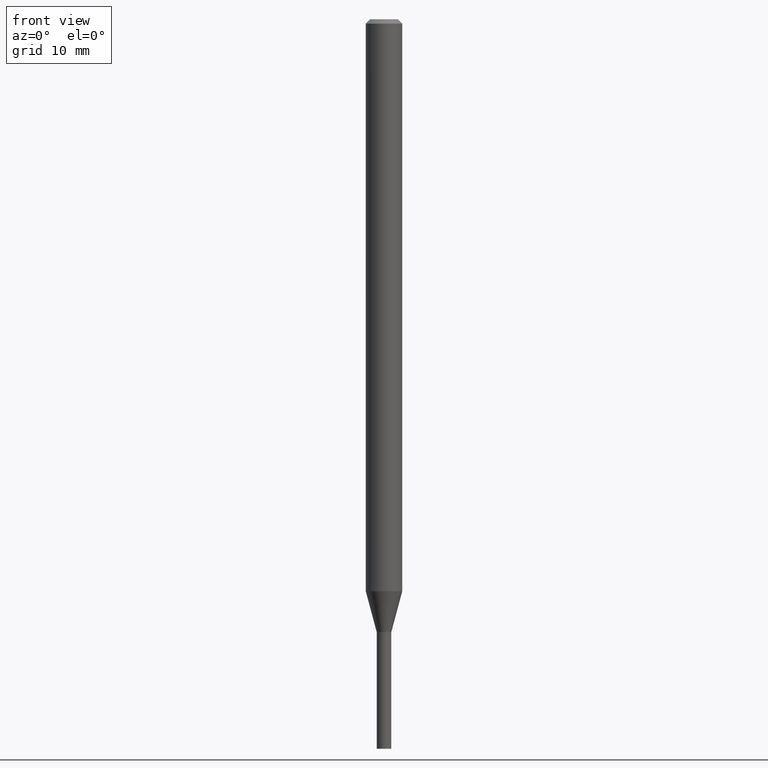
[diagram: clean part render]
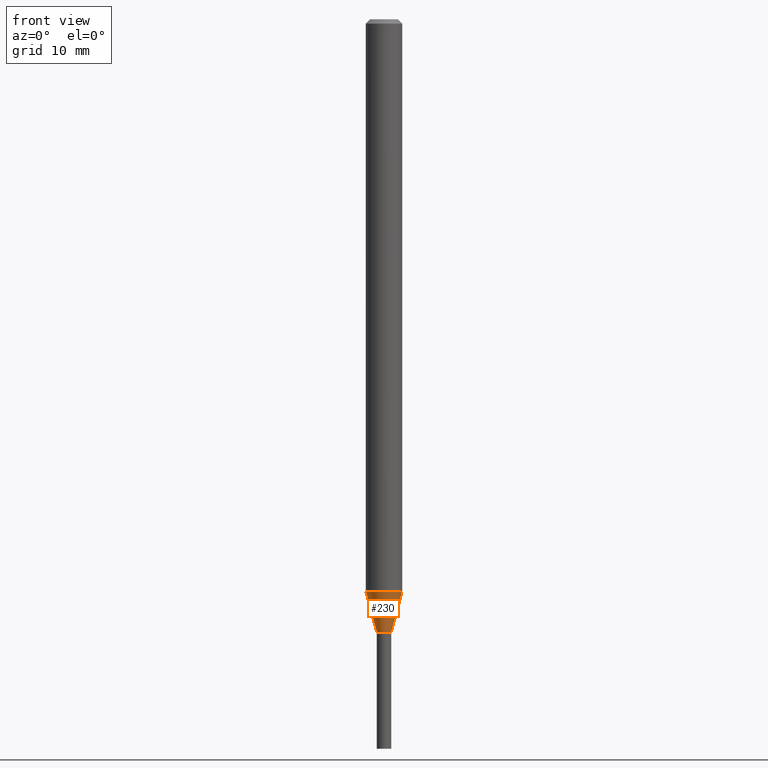
[diagram: same view with one face highlighted and labeled with its STEP entity id]
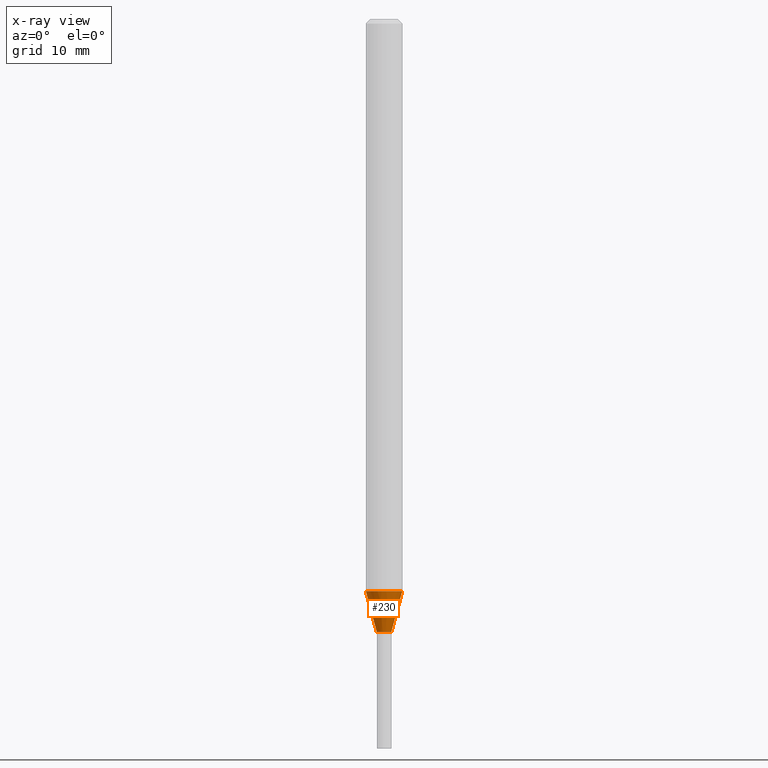
[diagram: x-ray of the same camera — body ghosted, the highlighted face saturated]
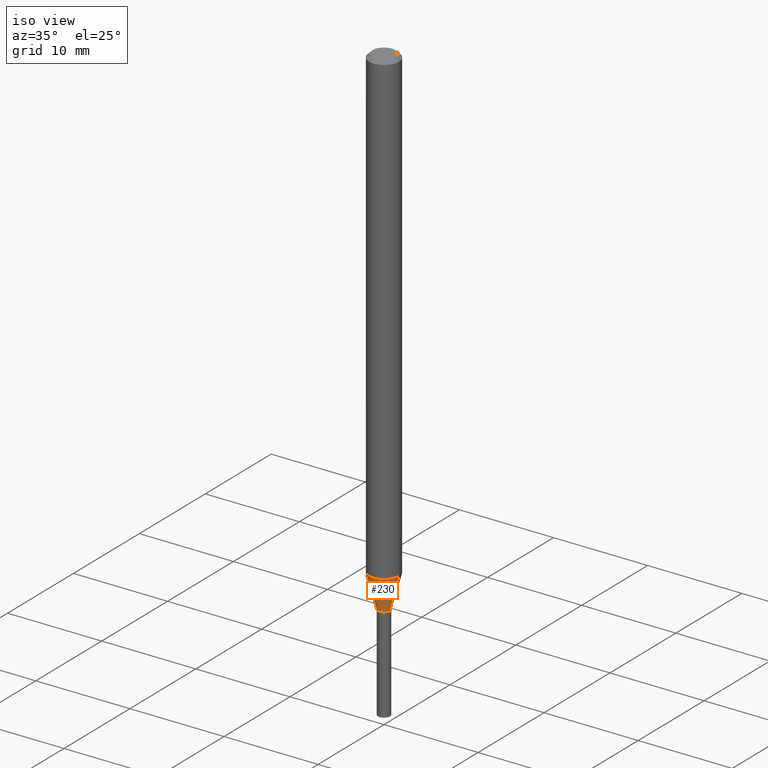
[diagram: same view with one face highlighted and labeled with its STEP entity id]
A machine part, front view. The second image highlights one B-rep face of the part: STEP entity #230.
The next image is the same camera in x-ray: the body ghosted, the highlighted face saturated — about 0% of this face is hidden behind the body in this view.
A second angle (iso view) of the same face is appended — the face is thin or edge-on in the first view.
In plain terms, the highlighted conical surface has half-angle 15 deg.
Its self-contained STEP definition (entity closure, byte-faithful):
#18 = DIRECTION ( 'NONE',  ( 1.000000000000000000, -6.982962677686262766E-15, 0.000000000000000000 ) ) ;
#57 = DIRECTION ( 'NONE',  ( -2.445468806185136597E-29, 3.491481338843145583E-15, 1.000000000000000000 ) ) ;
#58 = EDGE_CURVE ( 'NONE', #147, #273, #124, .T. ) ;
#86 = AXIS2_PLACEMENT_3D ( 'NONE', #351, #57, #153 ) ;
#119 = CONICAL_SURFACE ( 'NONE', #434, 0.02500000000000020609, 0.2617993877991500740 ) ;
#124 = LINE ( 'NONE', #177, #157 ) ;
#134 = CIRCLE ( 'NONE', #167, 0.06250000000000000000 ) ;
#145 = EDGE_CURVE ( 'NONE', #195, #356, #325, .T. ) ;
#147 = VERTEX_POINT ( 'NONE', #176 ) ;
#153 = DIRECTION ( 'NONE',  ( 1.000000000000000000, -6.982962677686275388E-15, 0.000000000000000000 ) ) ;
#154 = CARTESIAN_POINT ( 'NONE',  ( 0.02500000000000020609, -7.506684878512763535E-15, -2.100000000000000089 ) ) ;
#155 = FACE_OUTER_BOUND ( 'NONE', #266, .T. ) ;
#157 = VECTOR ( 'NONE', #169, 39.37007874015747433 ) ;
#167 = AXIS2_PLACEMENT_3D ( 'NONE', #193, #238, #18 ) ;
#169 = DIRECTION ( 'NONE',  ( -0.2588190451025213501, 5.211531920934551042E-15, 0.9659258262890682012 ) ) ;
#176 = CARTESIAN_POINT ( 'NONE',  ( -0.02500000000000020609, -6.776928631858541016E-15, -2.100000000000000089 ) ) ;
#177 = CARTESIAN_POINT ( 'NONE',  ( -0.02500000000000020609, -7.154475127630579297E-15, -2.100000000000000089 ) ) ;
#178 = ORIENTED_EDGE ( 'NONE', *, *, #145, .T. ) ;
#185 = CIRCLE ( 'NONE', #86, 0.02500000000000020609 ) ;
#189 = CARTESIAN_POINT ( 'NONE',  ( -0.06249999999999999306, -6.399382136086501158E-15, -1.960048094716168254 ) ) ;
#193 = CARTESIAN_POINT ( 'NONE',  ( 4.793236474250999839E-29, -6.843471345936563774E-15, -1.960048094716168254 ) ) ;
#195 = VERTEX_POINT ( 'NONE', #154 ) ;
#230 = ADVANCED_FACE ( 'NONE', ( #155 ), #119, .T. ) ;
#231 = VECTOR ( 'NONE', #364, 39.37007874015747433 ) ;
#238 = DIRECTION ( 'NONE',  ( -2.445468806185136597E-29, 3.491481338843145583E-15, 1.000000000000000000 ) ) ;
#243 = ORIENTED_EDGE ( 'NONE', *, *, #58, .F. ) ;
#265 = CARTESIAN_POINT ( 'NONE',  ( 5.135484492988787526E-29, -7.332110811570605290E-15, -2.100000000000000089 ) ) ;
#266 = EDGE_LOOP ( 'NONE', ( #243, #278, #178, #353 ) ) ;
#273 = VERTEX_POINT ( 'NONE', #189 ) ;
#278 = ORIENTED_EDGE ( 'NONE', *, *, #339, .T. ) ;
#282 = EDGE_CURVE ( 'NONE', #273, #356, #134, .T. ) ;
#285 = CARTESIAN_POINT ( 'NONE',  ( 0.02500000000000020609, -7.506684878512763535E-15, -2.100000000000000089 ) ) ;
#325 = LINE ( 'NONE', #285, #231 ) ;
#339 = EDGE_CURVE ( 'NONE', #147, #195, #185, .T. ) ;
#351 = CARTESIAN_POINT ( 'NONE',  ( 5.135484492988787526E-29, -7.332110811570605290E-15, -2.100000000000000089 ) ) ;
#353 = ORIENTED_EDGE ( 'NONE', *, *, #282, .F. ) ;
#356 = VERTEX_POINT ( 'NONE', #377 ) ;
#364 = DIRECTION ( 'NONE',  ( 0.2588190451025213501, 1.565188264969621968E-15, 0.9659258262890682012 ) ) ;
#377 = CARTESIAN_POINT ( 'NONE',  ( 0.06249999999999999306, -7.279906513291955444E-15, -1.960048094716168254 ) ) ;
#392 = DIRECTION ( 'NONE',  ( 1.000000000000000000, -6.982962677686275388E-15, 0.000000000000000000 ) ) ;
#423 = DIRECTION ( 'NONE',  ( -2.445468806185136597E-29, 3.491481338843145583E-15, 1.000000000000000000 ) ) ;
#434 = AXIS2_PLACEMENT_3D ( 'NONE', #265, #423, #392 ) ;